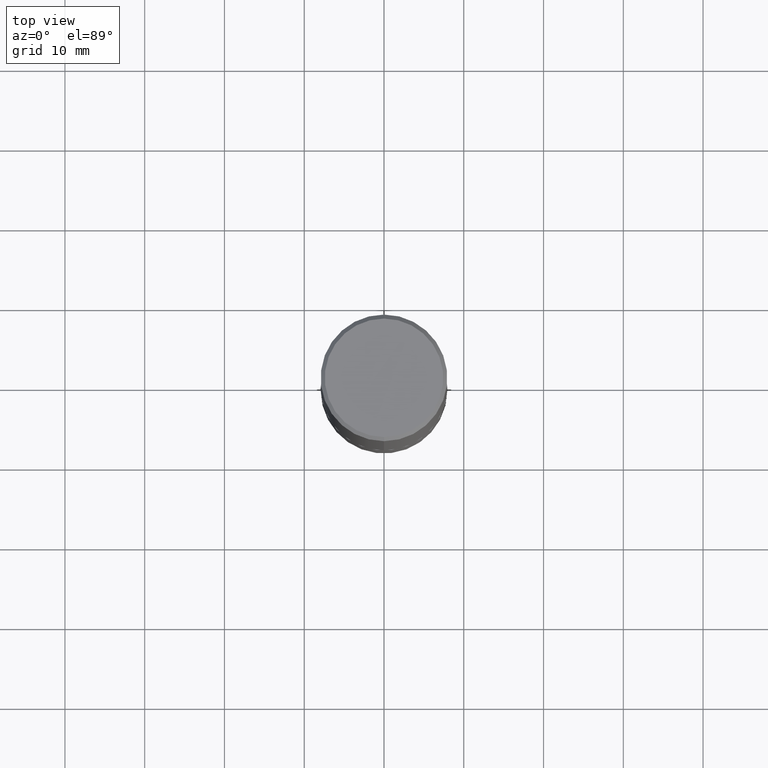
[diagram: clean part render]
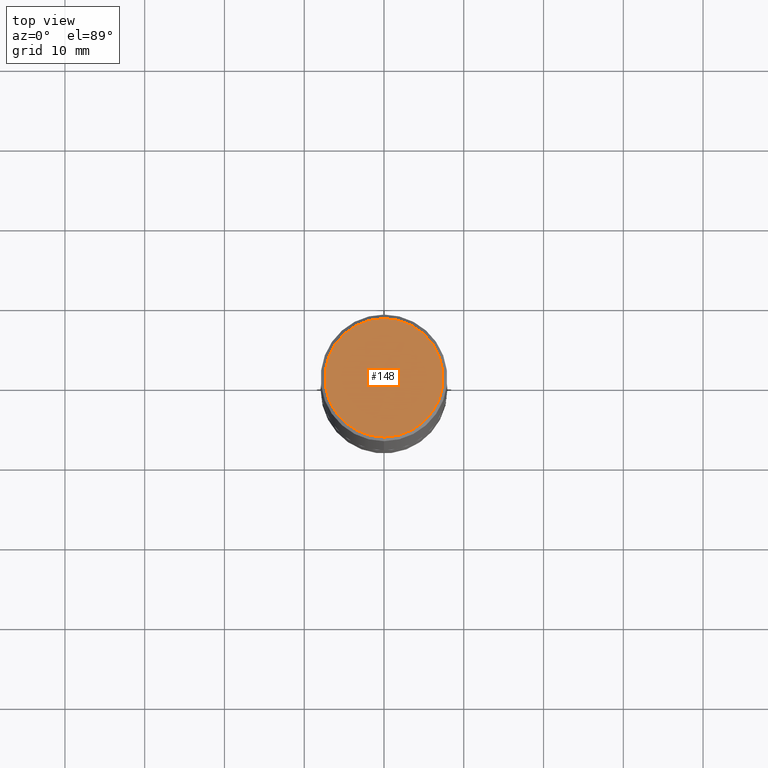
[diagram: same view with one face highlighted and labeled with its STEP entity id]
A machine part, top view. The second image highlights one B-rep face of the part: STEP entity #148.
In plain terms, the highlighted planar face has unit normal (0, -0, -1).
Its self-contained STEP definition (entity closure, byte-faithful):
#54 = DIRECTION ( 'NONE',  ( 2.445724373662476458E-29, -3.491115351669597153E-15, -1.000000000000000000 ) ) ;
#81 = ORIENTED_EDGE ( 'NONE', *, *, #371, .T. ) ;
#93 = FACE_OUTER_BOUND ( 'NONE', #211, .T. ) ;
#148 = ADVANCED_FACE ( 'NONE', ( #93 ), #386, .F. ) ;
#154 = DIRECTION ( 'NONE',  ( 6.982962677686265922E-15, 1.000000000000000000, -3.491115351669597153E-15 ) ) ;
#161 = AXIS2_PLACEMENT_3D ( 'NONE', #225, #54, #154 ) ;
#176 = VERTEX_POINT ( 'NONE', #351 ) ;
#191 = AXIS2_PLACEMENT_3D ( 'NONE', #412, #219, #352 ) ;
#195 = DIRECTION ( 'NONE',  ( -2.445724373662476739E-29, 3.491115351669597153E-15, 1.000000000000000000 ) ) ;
#211 = EDGE_LOOP ( 'NONE', ( #81, #231 ) ) ;
#214 = VERTEX_POINT ( 'NONE', #387 ) ;
#219 = DIRECTION ( 'NONE',  ( -2.445724373662476739E-29, 3.491115351669597153E-15, 1.000000000000000000 ) ) ;
#222 = EDGE_CURVE ( 'NONE', #214, #176, #337, .T. ) ;
#225 = CARTESIAN_POINT ( 'NONE',  ( 2.042516583223231356E-15, 0.2924999999999997602, -9.208947224701282030E-16 ) ) ;
#231 = ORIENTED_EDGE ( 'NONE', *, *, #222, .T. ) ;
#301 = DIRECTION ( 'NONE',  ( -6.982962677686266711E-15, -1.000000000000000000, 3.491115351669597547E-15 ) ) ;
#316 = AXIS2_PLACEMENT_3D ( 'NONE', #365, #195, #301 ) ;
#337 = CIRCLE ( 'NONE', #191, 0.2924999999999997602 ) ;
#351 = CARTESIAN_POINT ( 'NONE',  ( 2.112346210000094654E-15, 0.2924999999999997602, -8.206382045769000612E-16 ) ) ;
#352 = DIRECTION ( 'NONE',  ( -6.982962677686266711E-15, -1.000000000000000000, 3.491115351669597547E-15 ) ) ;
#365 = CARTESIAN_POINT ( 'NONE',  ( -4.903996188599928172E-45, 7.000141374439731641E-31, 2.005130357864563823E-16 ) ) ;
#371 = EDGE_CURVE ( 'NONE', #176, #214, #415, .T. ) ;
#386 = PLANE ( 'NONE',  #161 ) ;
#387 = CARTESIAN_POINT ( 'NONE',  ( -2.075300644325887099E-15, -0.2924999999999997602, 1.221664276149812727E-15 ) ) ;
#412 = CARTESIAN_POINT ( 'NONE',  ( -4.903996188599928172E-45, 7.000141374439731641E-31, 2.005130357864563823E-16 ) ) ;
#415 = CIRCLE ( 'NONE', #316, 0.2924999999999997602 ) ;